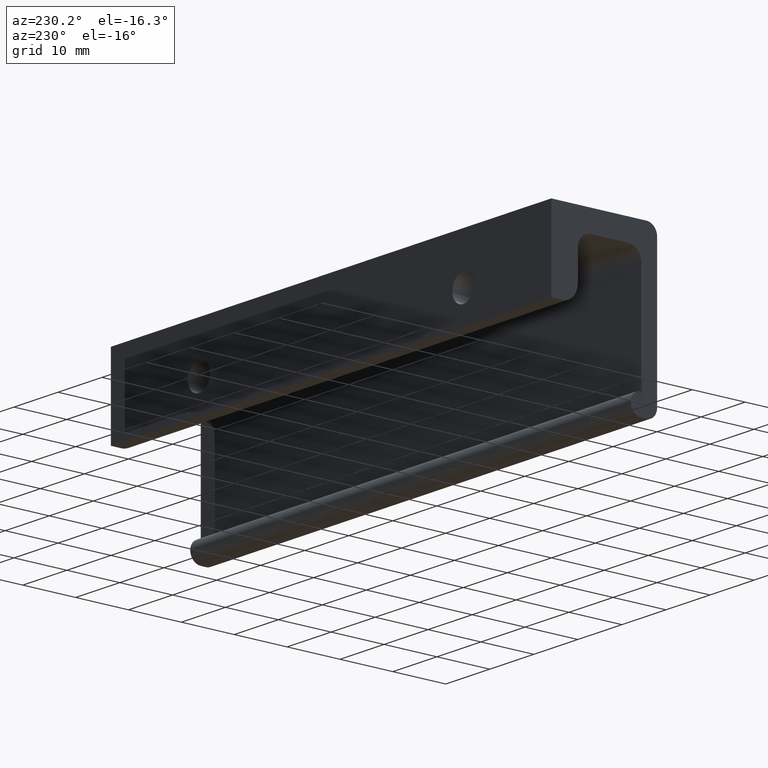
[diagram: clean part render]
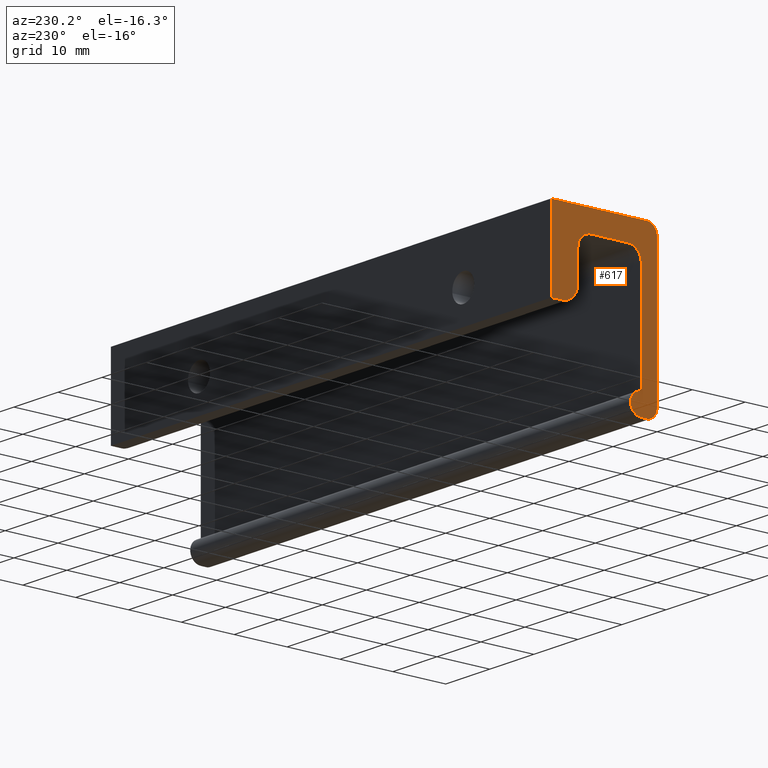
[diagram: same view with one face highlighted and labeled with its STEP entity id]
A machine part, auxiliary view. The second image highlights one B-rep face of the part: STEP entity #617.
In plain terms, the highlighted face is a freeform B-spline surface patch.
Its self-contained STEP definition (entity closure, byte-faithful):
#441=CARTESIAN_POINT('',(0.0,-5.000000000000110,-6.500000000000000));
#442=VERTEX_POINT('',#441);
#448=CARTESIAN_POINT('',(0.0,-5.0,-12.0));
#449=VERTEX_POINT('',#448);
#450=CARTESIAN_POINT('',(0.0,-5.0,-12.0));
#451=CARTESIAN_POINT('',(0.0,-5.000000000000110,-6.500000000000000));
#452=QUASI_UNIFORM_CURVE('',1,(#450,#451),.UNSPECIFIED.,.F.,.U.);
#453=EDGE_CURVE('',#449,#442,#452,.T.);
#470=CARTESIAN_POINT('',(-7.105427E-015,-20.998999961236120,1.498499941854179));
#471=CARTESIAN_POINT('',(-7.105427E-015,0.999000497677920,1.498499941854179));
#472=CARTESIAN_POINT('',(-7.105427E-015,-20.998999961236120,-31.498500746516889));
#473=CARTESIAN_POINT('',(-7.105427E-015,0.999000497677920,-31.498500746516889));
#474=B_SPLINE_SURFACE_WITH_KNOTS('',1,1,((#470,#472),(#471,#473)),.UNSPECIFIED.,.F.,.F.,.U.,(2,2),(2,2),(0.0,21.998000458914039),(0.0,32.997000688371067),.UNSPECIFIED.);
#475=CARTESIAN_POINT('',(0.0,0.0,0.0));
#476=VERTEX_POINT('',#475);
#477=CARTESIAN_POINT('',(0.0,0.0,-15.0));
#478=VERTEX_POINT('',#477);
#479=CARTESIAN_POINT('',(0.0,0.0,0.0));
#480=CARTESIAN_POINT('',(0.0,0.0,-15.0));
#481=QUASI_UNIFORM_CURVE('',1,(#479,#480),.UNSPECIFIED.,.F.,.U.);
#482=EDGE_CURVE('',#476,#478,#481,.T.);
#483=ORIENTED_EDGE('',*,*,#482,.T.);
#484=CARTESIAN_POINT('',(0.0,-2.0,-15.0));
#485=VERTEX_POINT('',#484);
#486=CARTESIAN_POINT('',(0.0,0.0,-15.0));
#487=CARTESIAN_POINT('',(0.0,-2.0,-15.0));
#488=QUASI_UNIFORM_CURVE('',1,(#486,#487),.UNSPECIFIED.,.F.,.U.);
#489=EDGE_CURVE('',#478,#485,#488,.T.);
#490=ORIENTED_EDGE('',*,*,#489,.T.);
#491=CARTESIAN_POINT('',(0.0,-5.0,-12.0));
#492=CARTESIAN_POINT('',(0.0,-5.000000000000001,-14.999999999999995));
#493=CARTESIAN_POINT('',(0.0,-2.0,-15.0));
#501=(BOUNDED_CURVE()B_SPLINE_CURVE(2,(#491,#492,#493),.UNSPECIFIED.,.F.,.U.)CURVE()GEOMETRIC_REPRESENTATION_ITEM()QUASI_UNIFORM_CURVE()RATIONAL_B_SPLINE_CURVE((1.0,0.707106781186548,1.0))REPRESENTATION_ITEM(''));
#502=EDGE_CURVE('',#449,#485,#501,.T.);
#503=ORIENTED_EDGE('',*,*,#502,.F.);
#504=ORIENTED_EDGE('',*,*,#453,.T.);
#505=CARTESIAN_POINT('',(0.0,-7.500000000000110,-4.0));
#506=VERTEX_POINT('',#505);
#507=CARTESIAN_POINT('',(0.0,-5.000000000000110,-6.500000000000000));
#508=CARTESIAN_POINT('',(0.0,-5.000000000000110,-4.000000000000000));
#509=CARTESIAN_POINT('',(0.0,-7.500000000000110,-4.0));
#517=(BOUNDED_CURVE()B_SPLINE_CURVE(2,(#507,#508,#509),.UNSPECIFIED.,.F.,.U.)CURVE()GEOMETRIC_REPRESENTATION_ITEM()QUASI_UNIFORM_CURVE()RATIONAL_B_SPLINE_CURVE((1.0,0.707106781186548,1.0))REPRESENTATION_ITEM(''));
#518=EDGE_CURVE('',#442,#506,#517,.T.);
#519=ORIENTED_EDGE('',*,*,#518,.T.);
#520=CARTESIAN_POINT('',(0.0,-14.500000000000000,-4.000000000000085));
#521=VERTEX_POINT('',#520);
#522=CARTESIAN_POINT('',(0.0,-7.500000000000110,-4.0));
#523=CARTESIAN_POINT('',(0.0,-14.500000000000000,-4.000000000000085));
#524=QUASI_UNIFORM_CURVE('',1,(#522,#523),.UNSPECIFIED.,.F.,.U.);
#525=EDGE_CURVE('',#506,#521,#524,.T.);
#526=ORIENTED_EDGE('',*,*,#525,.T.);
#527=CARTESIAN_POINT('',(0.0,-17.0,-6.500000000000000));
#528=VERTEX_POINT('',#527);
#529=CARTESIAN_POINT('',(0.0,-14.500000000000000,-4.000000000000085));
#530=CARTESIAN_POINT('',(0.0,-17.000000000000004,-4.000000000000000));
#531=CARTESIAN_POINT('',(0.0,-17.0,-6.500000000000000));
#539=(BOUNDED_CURVE()B_SPLINE_CURVE(2,(#529,#530,#531),.UNSPECIFIED.,.F.,.U.)CURVE()GEOMETRIC_REPRESENTATION_ITEM()QUASI_UNIFORM_CURVE()RATIONAL_B_SPLINE_CURVE((1.0,0.707106781186548,1.0))REPRESENTATION_ITEM(''));
#540=EDGE_CURVE('',#521,#528,#539,.T.);
#541=ORIENTED_EDGE('',*,*,#540,.T.);
#542=CARTESIAN_POINT('',(0.0,-17.000000000000249,-26.0));
#543=VERTEX_POINT('',#542);
#544=CARTESIAN_POINT('',(0.0,-17.0,-6.500000000000000));
#545=CARTESIAN_POINT('',(0.0,-17.000000000000249,-26.0));
#546=QUASI_UNIFORM_CURVE('',1,(#544,#545),.UNSPECIFIED.,.F.,.U.);
#547=EDGE_CURVE('',#528,#543,#546,.T.);
#548=ORIENTED_EDGE('',*,*,#547,.T.);
#549=CARTESIAN_POINT('',(0.0,-17.000000000000249,-30.0));
#550=VERTEX_POINT('',#549);
#551=CARTESIAN_POINT('',(0.0,-17.000000000000249,-30.0));
#552=CARTESIAN_POINT('',(0.0,-15.000000000000249,-30.000000000000004));
#553=CARTESIAN_POINT('',(0.0,-15.000000000000250,-28.0));
#554=CARTESIAN_POINT('',(0.0,-15.000000000000249,-26.000000000000004));
#555=CARTESIAN_POINT('',(0.0,-17.000000000000249,-26.0));
#563=(BOUNDED_CURVE()B_SPLINE_CURVE(2,(#551,#552,#553,#554,#555),.UNSPECIFIED.,.F.,.U.)B_SPLINE_CURVE_WITH_KNOTS((3,2,3),(0.0,0.500000000000000,1.0),.UNSPECIFIED.)CURVE()GEOMETRIC_REPRESENTATION_ITEM()RATIONAL_B_SPLINE_CURVE((1.0,0.707106781186548,1.0,0.707106781186548,1.0))REPRESENTATION_ITEM(''));
#564=EDGE_CURVE('',#550,#543,#563,.T.);
#565=ORIENTED_EDGE('',*,*,#564,.F.);
#566=CARTESIAN_POINT('',(0.0,-18.0,-30.0));
#567=VERTEX_POINT('',#566);
#568=CARTESIAN_POINT('',(0.0,-17.000000000000249,-30.0));
#569=CARTESIAN_POINT('',(0.0,-18.0,-30.0));
#570=QUASI_UNIFORM_CURVE('',1,(#568,#569),.UNSPECIFIED.,.F.,.U.);
#571=EDGE_CURVE('',#550,#567,#570,.T.);
#572=ORIENTED_EDGE('',*,*,#571,.T.);
#573=CARTESIAN_POINT('',(0.0,-20.0,-28.0));
#574=VERTEX_POINT('',#573);
#575=CARTESIAN_POINT('',(0.0,-20.0,-28.0));
#576=CARTESIAN_POINT('',(0.0,-19.999999999999996,-30.000000000000004));
#577=CARTESIAN_POINT('',(0.0,-18.0,-30.0));
#585=(BOUNDED_CURVE()B_SPLINE_CURVE(2,(#575,#576,#577),.UNSPECIFIED.,.F.,.U.)CURVE()GEOMETRIC_REPRESENTATION_ITEM()QUASI_UNIFORM_CURVE()RATIONAL_B_SPLINE_CURVE((1.0,0.707106781186548,1.0))REPRESENTATION_ITEM(''));
#586=EDGE_CURVE('',#574,#567,#585,.T.);
#587=ORIENTED_EDGE('',*,*,#586,.F.);
#588=CARTESIAN_POINT('',(0.0,-20.0,-2.0));
#589=VERTEX_POINT('',#588);
#590=CARTESIAN_POINT('',(0.0,-20.0,-28.0));
#591=CARTESIAN_POINT('',(0.0,-20.0,-2.0));
#592=QUASI_UNIFORM_CURVE('',1,(#590,#591),.UNSPECIFIED.,.F.,.U.);
#593=EDGE_CURVE('',#574,#589,#592,.T.);
#594=ORIENTED_EDGE('',*,*,#593,.T.);
#595=CARTESIAN_POINT('',(0.0,-18.0,2.220446E-016));
#596=VERTEX_POINT('',#595);
#597=CARTESIAN_POINT('',(0.0,-18.0,0.0));
#598=CARTESIAN_POINT('',(0.0,-19.999999999999996,0.0));
#599=CARTESIAN_POINT('',(0.0,-20.0,-2.0));
#607=(BOUNDED_CURVE()B_SPLINE_CURVE(2,(#597,#598,#599),.UNSPECIFIED.,.F.,.U.)CURVE()GEOMETRIC_REPRESENTATION_ITEM()QUASI_UNIFORM_CURVE()RATIONAL_B_SPLINE_CURVE((1.0,0.707106781186548,1.0))REPRESENTATION_ITEM(''));
#608=EDGE_CURVE('',#596,#589,#607,.T.);
#609=ORIENTED_EDGE('',*,*,#608,.F.);
#610=CARTESIAN_POINT('',(0.0,-18.0,2.220446E-016));
#611=CARTESIAN_POINT('',(0.0,0.0,0.0));
#612=QUASI_UNIFORM_CURVE('',1,(#610,#611),.UNSPECIFIED.,.F.,.U.);
#613=EDGE_CURVE('',#596,#476,#612,.T.);
#614=ORIENTED_EDGE('',*,*,#613,.T.);
#615=EDGE_LOOP('',(#483,#490,#503,#504,#519,#526,#541,#548,#565,#572,#587,#594,#609,#614));
#616=FACE_OUTER_BOUND('',#615,.T.);
#617=ADVANCED_FACE('',(#616),#474,.T.);